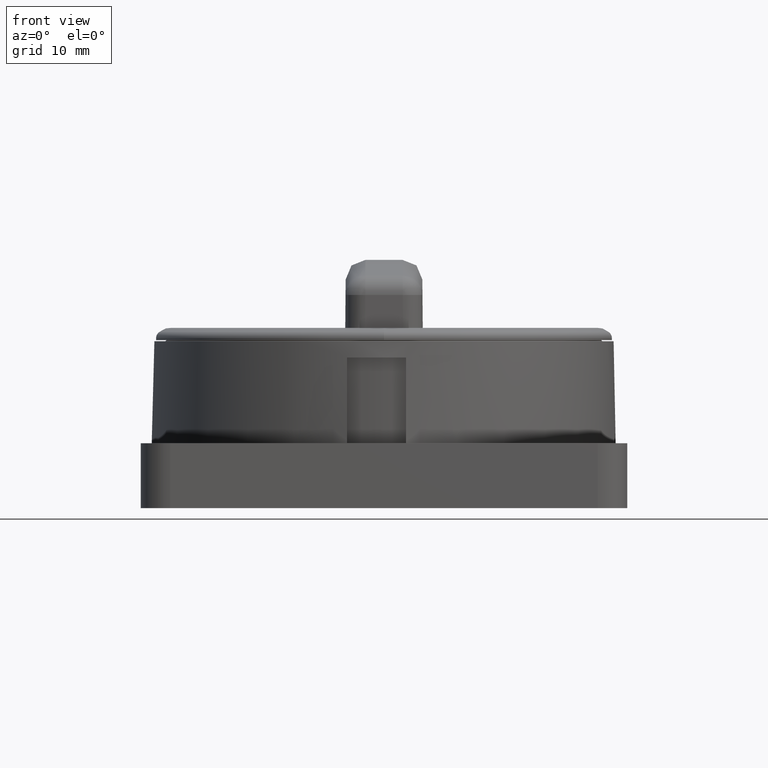
[diagram: clean part render]
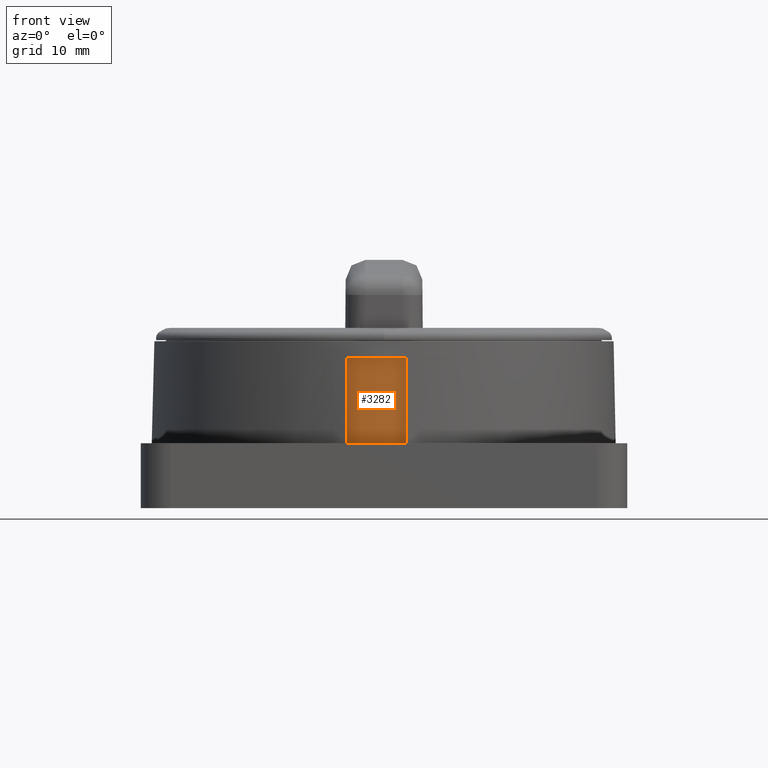
[diagram: same view with one face highlighted and labeled with its STEP entity id]
A machine part, front view. The second image highlights one B-rep face of the part: STEP entity #3282.
In plain terms, the highlighted conical surface has half-angle 2 deg.
Its self-contained STEP definition (entity closure, byte-faithful):
#1890=CARTESIAN_POINT('',(114.75732674849901,86.354255959248007,70.900000000000006));
#1891=VERTEX_POINT('',#1890);
#1898=CARTESIAN_POINT('',(114.75732674849901,86.771989450070208,58.999999999999702));
#1899=VERTEX_POINT('',#1898);
#1900=CARTESIAN_POINT('',(114.75732674849901,86.319155040151657,71.900000000000006));
#1901=CARTESIAN_POINT('',(114.75732674849901,86.591871818634246,64.130448420746205));
#1902=CARTESIAN_POINT('',(114.75732674849901,86.859756360186381,56.5));
#1910=(BOUNDED_CURVE()B_SPLINE_CURVE(2,(#1900,#1901,#1902),.UNSPECIFIED.,.F.,.U.)B_SPLINE_CURVE_WITH_KNOTS((3,3),(0.0,1.540948570809126),.UNSPECIFIED.)CURVE()GEOMETRIC_REPRESENTATION_ITEM()RATIONAL_B_SPLINE_CURVE((1.0,1.000040371238772,1.0))REPRESENTATION_ITEM(''));
#1911=EDGE_CURVE('',#1891,#1899,#1910,.T.);
#1932=CARTESIAN_POINT('',(106.55609693373401,87.057753794244888,58.999999999999702));
#1933=VERTEX_POINT('',#1932);
#1940=CARTESIAN_POINT('',(106.55630905892301,86.635988269583905,70.900000000000006));
#1941=VERTEX_POINT('',#1940);
#1942=CARTESIAN_POINT('',(106.55609693373401,87.057753794244888,58.999999999999702));
#1943=CARTESIAN_POINT('',(106.55616765690601,86.917135907177695,62.966665625298113));
#1944=CARTESIAN_POINT('',(106.55623836509399,86.776547813686719,66.933332306878697));
#1945=CARTESIAN_POINT('',(106.55630905892301,86.635988269583905,70.900000000000006));
#1946=QUASI_UNIFORM_CURVE('',3,(#1942,#1943,#1944,#1945),.UNSPECIFIED.,.F.,.U.);
#1947=EDGE_CURVE('',#1933,#1941,#1946,.T.);
#1969=CARTESIAN_POINT('',(111.68807423814602,116.51422582001801,70.900000000000006));
#1970=DIRECTION('',(0.0,0.0,1.0));
#1971=DIRECTION('',(1.0,0.0,0.0));
#1972=AXIS2_PLACEMENT_3D('',#1969,#1970,#1971);
#1973=CIRCLE('',#1972,30.315740020241506);
#1974=EDGE_CURVE('',#1941,#1891,#1973,.T.);
#3265=CARTESIAN_POINT('',(111.68807423814602,116.51422582001801,73.289530150989009));
#3266=DIRECTION('',(0.0,0.0,1.0));
#3267=DIRECTION('',(0.0,-1.0,0.0));
#3268=AXIS2_PLACEMENT_3D('',#3265,#3266,#3267);
#3269=CONICAL_SURFACE('',#3268,30.399184251837703,2.00000000000001);
#3270=ORIENTED_EDGE('',*,*,#1911,.F.);
#3271=ORIENTED_EDGE('',*,*,#1974,.F.);
#3272=ORIENTED_EDGE('',*,*,#1947,.F.);
#3273=CARTESIAN_POINT('',(111.68807423814602,116.51422582001801,58.999999999999702));
#3274=DIRECTION('',(0.0,0.0,1.0));
#3275=DIRECTION('',(0.0,1.0,0.0));
#3276=AXIS2_PLACEMENT_3D('',#3273,#3274,#3275);
#3277=CIRCLE('',#3276,29.900182863289704);
#3278=EDGE_CURVE('',#1933,#1899,#3277,.T.);
#3279=ORIENTED_EDGE('',*,*,#3278,.T.);
#3280=EDGE_LOOP('',(#3270,#3271,#3272,#3279));
#3281=FACE_OUTER_BOUND('',#3280,.T.);
#3282=ADVANCED_FACE('',(#3281),#3269,.T.);